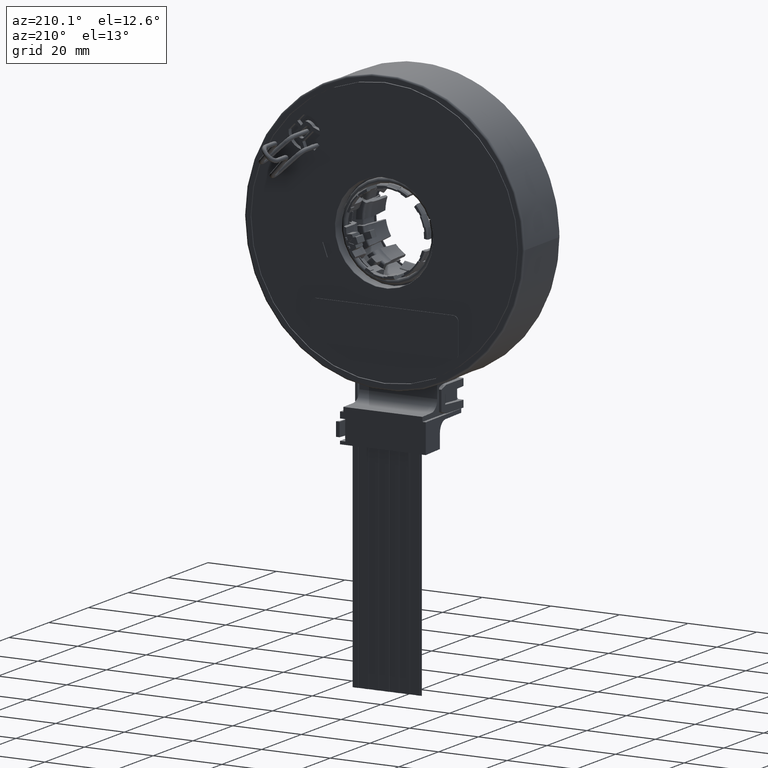
[diagram: clean part render]
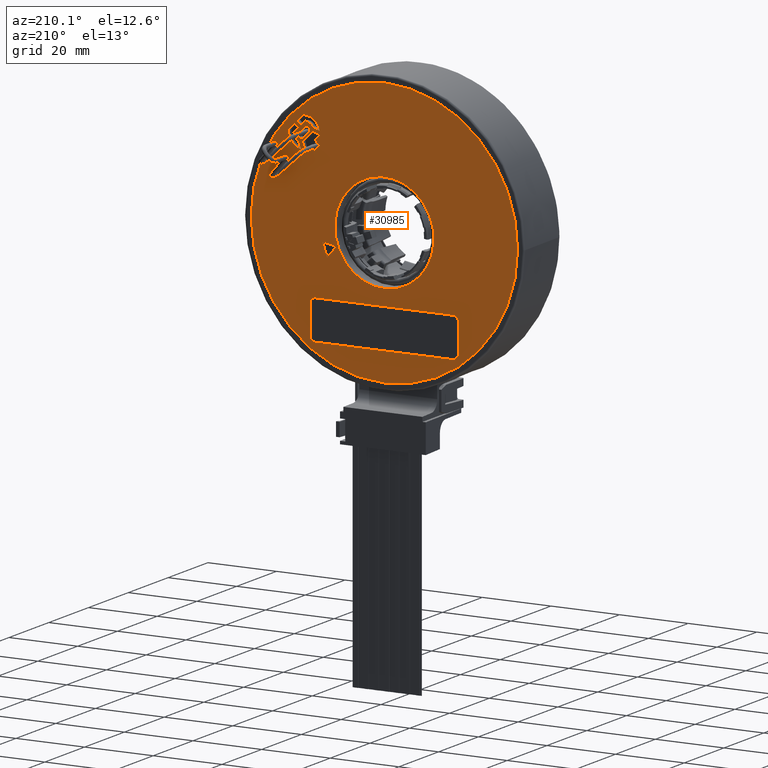
[diagram: same view with one face highlighted and labeled with its STEP entity id]
A machine part, auxiliary view. The second image highlights one B-rep face of the part: STEP entity #30985.
In plain terms, the highlighted planar face has unit normal (0, 1, 0).
Its self-contained STEP definition (entity closure, byte-faithful):
#1371=CARTESIAN_POINT('',(0.E0,7.19E-1,0.E0));
#1372=DIRECTION('',(0.E0,-1.E0,0.E0));
#1373=DIRECTION('',(7.071067811865E-1,0.E0,7.071067811865E-1));
#1374=AXIS2_PLACEMENT_3D('',#1371,#1372,#1373);
#1376=CARTESIAN_POINT('',(0.E0,7.19E-1,0.E0));
#1377=DIRECTION('',(0.E0,1.E0,0.E0));
#1378=DIRECTION('',(7.071067811865E-1,0.E0,7.071067811865E-1));
#1379=AXIS2_PLACEMENT_3D('',#1376,#1377,#1378);
#1381=CARTESIAN_POINT('',(9.192388155425E-1,7.19E-1,9.192388155425E-1));
#1382=DIRECTION('',(0.E0,1.E0,0.E0));
#1383=DIRECTION('',(-8.446981056054E-1,0.E0,5.352430386157E-1));
#1384=AXIS2_PLACEMENT_3D('',#1381,#1382,#1383);
#1386=DIRECTION('',(-9.369948462959E-1,0.E0,-3.493431808622E-1));
#1387=VECTOR('',#1386,8.235482443757E-2);
#1388=CARTESIAN_POINT('',(8.197032308454E-1,7.19E-1,9.823095486839E-1));
#1389=LINE('',#1388,#1387);
#1390=CARTESIAN_POINT('',(9.192388155425E-1,7.19E-1,9.192388155425E-1));
#1391=DIRECTION('',(0.E0,1.E0,0.E0));
#1392=DIRECTION('',(-9.816757264598E-1,0.E0,1.905590934058E-1));
#1393=AXIS2_PLACEMENT_3D('',#1390,#1391,#1392);
#1395=DIRECTION('',(7.071067811865E-1,0.E0,-7.071067811865E-1));
#1396=VECTOR('',#1395,1.E-1);
#1397=CARTESIAN_POINT('',(9.292543316052E-1,7.19E-1,1.098959959090E0));
#1398=LINE('',#1397,#1396);
#1399=DIRECTION('',(-7.071067811865E-1,0.E0,-7.071067811865E-1));
#1400=VECTOR('',#1399,6.116407864999E-2);
#1401=CARTESIAN_POINT('',(9.999650097238E-1,7.19E-1,1.028249280971E0));
#1402=LINE('',#1401,#1400);
#1403=DIRECTION('',(-7.071067811865E-1,0.E0,7.071067811865E-1));
#1404=VECTOR('',#1403,7.25E-2);
#1405=CARTESIAN_POINT('',(9.567154749454E-1,7.19E-1,9.849997461929E-1));
#1406=LINE('',#1405,#1404);
#1407=CARTESIAN_POINT('',(9.192388155425E-1,7.19E-1,9.192388155425E-1));
#1408=DIRECTION('',(0.E0,1.E0,0.E0));
#1409=DIRECTION('',(9.984507974858E-1,0.E0,5.564175590370E-2));
#1410=AXIS2_PLACEMENT_3D('',#1407,#1408,#1409);
#1412=DIRECTION('',(3.493431808622E-1,0.E0,9.369948462959E-1));
#1413=VECTOR('',#1412,8.235482443757E-2);
#1414=CARTESIAN_POINT('',(9.535394523556E-1,7.19E-1,7.425371847797E-1));
#1415=LINE('',#1414,#1413);
#1416=CARTESIAN_POINT('',(9.192388155425E-1,7.19E-1,9.192388155425E-1));
#1417=DIRECTION('',(0.E0,1.E0,0.E0));
#1418=DIRECTION('',(9.931301085669E-1,0.E0,-1.170153300124E-1));
#1419=AXIS2_PLACEMENT_3D('',#1416,#1417,#1418);
#1421=DIRECTION('',(-7.071067811865E-1,0.E0,7.071067811865E-1));
#1422=VECTOR('',#1421,7.25E-2);
#1423=CARTESIAN_POINT('',(1.036264987829E0,7.19E-1,9.054502333094E-1));
#1424=LINE('',#1423,#1422);
#1425=DIRECTION('',(7.071067811865E-1,0.E0,7.071067811865E-1));
#1426=VECTOR('',#1425,6.116407864999E-2);
#1427=CARTESIAN_POINT('',(9.849997461929E-1,7.19E-1,9.567154749454E-1));
#1428=LINE('',#1427,#1426);
#1429=DIRECTION('',(7.071067811865E-1,0.E0,-7.071067811865E-1));
#1430=VECTOR('',#1429,1.E-1);
#1431=CARTESIAN_POINT('',(1.028249280971E0,7.19E-1,9.999650097238E-1));
#1432=LINE('',#1431,#1430);
#1433=DIRECTION('',(9.848077530122E-1,0.E0,1.736481776669E-1));
#1434=VECTOR('',#1433,1.628127759115E-1);
#1435=CARTESIAN_POINT('',(5.506598757805E-1,7.19E-1,-2.004238039888E-1));
#1436=LINE('',#1435,#1434);
#1437=DIRECTION('',(-3.420201433257E-1,0.E0,-9.396926207859E-1));
#1438=VECTOR('',#1437,1.628127759115E-1);
#1439=CARTESIAN_POINT('',(7.109991597876E-1,7.19E-1,-1.721516621509E-1));
#1440=LINE('',#1439,#1438);
#1441=DIRECTION('',(-6.427876096865E-1,0.E0,7.660444431190E-1));
#1442=VECTOR('',#1441,1.628127759115E-1);
#1443=CARTESIAN_POINT('',(6.553139108351E-1,7.19E-1,-3.251456262446E-1));
#1444=LINE('',#1443,#1442);
#1445=DIRECTION('',(-7.071067811865E-1,0.E0,7.071067811865E-1));
#1446=VECTOR('',#1445,7.886588452046E-2);
#1447=CARTESIAN_POINT('',(7.952575965703E-1,7.19E-1,8.539474594088E-1));
#1448=LINE('',#1447,#1446);
#1449=DIRECTION('',(9.369948462959E-1,0.E0,3.493431808622E-1));
#1450=VECTOR('',#1449,8.795284178903E-2);
#1451=CARTESIAN_POINT('',(7.394909948216E-1,7.19E-1,9.097140611575E-1));
#1452=LINE('',#1451,#1450);
#1453=DIRECTION('',(7.071067811865E-1,0.E0,-7.071067811865E-1));
#1454=VECTOR('',#1453,1.676372445191E-1);
#1455=CARTESIAN_POINT('',(8.219023542950E-1,7.19E-1,9.404397866740E-1));
#1456=LINE('',#1455,#1454);
#1457=DIRECTION('',(-3.493431808622E-1,0.E0,-9.369948462959E-1));
#1458=VECTOR('',#1457,8.795284178903E-2);
#1459=CARTESIAN_POINT('',(9.404397866740E-1,7.19E-1,8.219023542950E-1));
#1460=LINE('',#1459,#1458);
#1461=DIRECTION('',(-7.071067811865E-1,0.E0,7.071067811865E-1));
#1462=VECTOR('',#1461,7.886588452046E-2);
#1463=CARTESIAN_POINT('',(9.097140611575E-1,7.19E-1,7.394909948216E-1));
#1464=LINE('',#1463,#1462);
#1465=DIRECTION('',(-7.071067811865E-1,0.E0,-7.071067811865E-1));
#1466=VECTOR('',#1465,7.E-2);
#1467=CARTESIAN_POINT('',(8.539474594088E-1,7.19E-1,7.952575965703E-1));
#1468=LINE('',#1467,#1466);
#1469=DIRECTION('',(-7.071067811865E-1,0.E0,7.071067811865E-1));
#1470=VECTOR('',#1469,8.3E-2);
#1471=CARTESIAN_POINT('',(8.044499847258E-1,7.19E-1,7.457601218873E-1));
#1472=LINE('',#1471,#1470);
#1473=DIRECTION('',(7.071067811865E-1,0.E0,7.071067811865E-1));
#1474=VECTOR('',#1473,7.E-2);
#1475=CARTESIAN_POINT('',(7.457601218873E-1,7.19E-1,8.044499847258E-1));
#1476=LINE('',#1475,#1474);
#1477=DIRECTION('',(-1.E0,0.E0,0.E0));
#1478=VECTOR('',#1477,1.58E0);
#1479=CARTESIAN_POINT('',(7.9E-1,7.19E-1,-1.2E0));
#1480=LINE('',#1479,#1478);
#1481=CARTESIAN_POINT('',(-7.9E-1,7.19E-1,-1.14E0));
#1482=DIRECTION('',(0.E0,-1.E0,0.E0));
#1483=DIRECTION('',(-1.E0,0.E0,-5.551115123126E-14));
#1484=AXIS2_PLACEMENT_3D('',#1481,#1482,#1483);
#1486=DIRECTION('',(0.E0,0.E0,1.E0));
#1487=VECTOR('',#1486,3.3E-1);
#1488=CARTESIAN_POINT('',(-8.5E-1,7.19E-1,-1.14E0));
#1489=LINE('',#1488,#1487);
#1490=CARTESIAN_POINT('',(-7.9E-1,7.19E-1,-8.1E-1));
#1491=DIRECTION('',(0.E0,-1.E0,0.E0));
#1492=DIRECTION('',(1.110223024625E-14,0.E0,1.E0));
#1493=AXIS2_PLACEMENT_3D('',#1490,#1491,#1492);
#1495=DIRECTION('',(1.E0,0.E0,0.E0));
#1496=VECTOR('',#1495,1.58E0);
#1497=CARTESIAN_POINT('',(-7.9E-1,7.19E-1,-7.5E-1));
#1498=LINE('',#1497,#1496);
#1499=CARTESIAN_POINT('',(7.9E-1,7.19E-1,-8.1E-1));
#1500=DIRECTION('',(0.E0,-1.E0,0.E0));
#1501=DIRECTION('',(1.E0,0.E0,-6.476300976980E-14));
#1502=AXIS2_PLACEMENT_3D('',#1499,#1500,#1501);
#1504=DIRECTION('',(0.E0,0.E0,-1.E0));
#1505=VECTOR('',#1504,3.3E-1);
#1506=CARTESIAN_POINT('',(8.5E-1,7.19E-1,-8.1E-1));
#1507=LINE('',#1506,#1505);
#1508=CARTESIAN_POINT('',(7.9E-1,7.19E-1,-1.14E0));
#1509=DIRECTION('',(0.E0,-1.E0,0.E0));
#1510=DIRECTION('',(-3.515706244646E-14,0.E0,-1.E0));
#1511=AXIS2_PLACEMENT_3D('',#1508,#1509,#1510);
#1613=CARTESIAN_POINT('',(0.E0,7.19E-1,0.E0));
#1614=DIRECTION('',(0.E0,-1.E0,0.E0));
#1615=DIRECTION('',(-7.071067811865E-1,0.E0,-7.071067811865E-1));
#1616=AXIS2_PLACEMENT_3D('',#1613,#1614,#1615);
#1628=CARTESIAN_POINT('',(0.E0,7.19E-1,0.E0));
#1629=DIRECTION('',(0.E0,-1.E0,0.E0));
#1630=DIRECTION('',(7.071067811865E-1,0.E0,7.071067811865E-1));
#1631=AXIS2_PLACEMENT_3D('',#1628,#1629,#1630);
#17050=CARTESIAN_POINT('',(0.E0,7.19E-1,0.E0));
#17051=DIRECTION('',(0.E0,-1.E0,0.E0));
#17052=DIRECTION('',(7.311597909433E-1,0.E0,6.822062445535E-1));
#17053=AXIS2_PLACEMENT_3D('',#17050,#17051,#17052);
#17060=CARTESIAN_POINT('',(8.868681179195E-1,7.19E-1,9.505077282263E-1));
#17061=DIRECTION('',(0.E0,-1.E0,0.E0));
#17062=DIRECTION('',(6.822062445536E-1,0.E0,7.311597909432E-1));
#17063=AXIS2_PLACEMENT_3D('',#17060,#17061,#17062);
#17078=CARTESIAN_POINT('',(0.E0,7.19E-1,0.E0));
#17079=DIRECTION('',(0.E0,-1.E0,0.E0));
#17080=DIRECTION('',(7.311597909433E-1,0.E0,6.822062445535E-1));
#17081=AXIS2_PLACEMENT_3D('',#17078,#17079,#17080);
#17092=CARTESIAN_POINT('',(9.505077282263E-1,7.19E-1,8.868681179195E-1));
#17093=DIRECTION('',(0.E0,-1.E0,0.E0));
#17094=DIRECTION('',(-7.311597909433E-1,0.E0,-6.822062445534E-1));
#17095=AXIS2_PLACEMENT_3D('',#17092,#17093,#17094);
#27312=CARTESIAN_POINT('',(1.080459161653E0,7.19E-1,1.080459161653E0));
#27314=VERTEX_POINT('',#27312);
#27316=CARTESIAN_POINT('',(-1.080459161653E0,7.19E-1,-1.080459161653E0));
#27318=VERTEX_POINT('',#27316);
#27612=CARTESIAN_POINT('',(8.539474594088E-1,7.19E-1,7.952575965703E-1));
#27613=CARTESIAN_POINT('',(8.044499847258E-1,7.19E-1,7.457601218873E-1));
#27614=VERTEX_POINT('',#27612);
#27615=VERTEX_POINT('',#27613);
#27616=CARTESIAN_POINT('',(7.457601218873E-1,7.19E-1,8.044499847258E-1));
#27617=VERTEX_POINT('',#27616);
#27618=CARTESIAN_POINT('',(7.952575965703E-1,7.19E-1,8.539474594088E-1));
#27619=VERTEX_POINT('',#27618);
#27654=CARTESIAN_POINT('',(-4.023437584951E-1,7.19E-1,-4.023437584951E-1));
#27655=CARTESIAN_POINT('',(4.023437584951E-1,7.19E-1,4.023437584951E-1));
#27656=VERTEX_POINT('',#27654);
#27657=VERTEX_POINT('',#27655);
#27672=CARTESIAN_POINT('',(5.506598757805E-1,7.19E-1,-2.004238039888E-1));
#27673=CARTESIAN_POINT('',(7.109991597876E-1,7.19E-1,-1.721516621509E-1));
#27674=VERTEX_POINT('',#27672);
#27675=VERTEX_POINT('',#27673);
#27676=CARTESIAN_POINT('',(6.553139108351E-1,7.19E-1,-3.251456262446E-1));
#27677=VERTEX_POINT('',#27676);
#27686=CARTESIAN_POINT('',(7.425371847797E-1,7.19E-1,9.535394523556E-1));
#27687=CARTESIAN_POINT('',(9.292543316052E-1,7.19E-1,1.098959959090E0));
#27688=VERTEX_POINT('',#27686);
#27689=VERTEX_POINT('',#27687);
#27690=CARTESIAN_POINT('',(9.999650097238E-1,7.19E-1,1.028249280971E0));
#27691=VERTEX_POINT('',#27690);
#27692=CARTESIAN_POINT('',(1.028249280971E0,7.19E-1,9.999650097238E-1));
#27693=CARTESIAN_POINT('',(1.098959959090E0,7.19E-1,9.292543316052E-1));
#27694=VERTEX_POINT('',#27692);
#27695=VERTEX_POINT('',#27693);
#27696=CARTESIAN_POINT('',(9.535394523556E-1,7.19E-1,7.425371847797E-1));
#27697=VERTEX_POINT('',#27696);
#27698=CARTESIAN_POINT('',(9.097140611575E-1,7.19E-1,7.394909948216E-1));
#27699=VERTEX_POINT('',#27698);
#27700=CARTESIAN_POINT('',(7.394909948216E-1,7.19E-1,9.097140611575E-1));
#27701=VERTEX_POINT('',#27700);
#27702=CARTESIAN_POINT('',(1.036264987829E0,7.19E-1,9.054502333094E-1));
#27703=CARTESIAN_POINT('',(9.849997461929E-1,7.19E-1,9.567154749454E-1));
#27704=VERTEX_POINT('',#27702);
#27705=VERTEX_POINT('',#27703);
#27706=CARTESIAN_POINT('',(9.567154749454E-1,7.19E-1,9.849997461929E-1));
#27707=CARTESIAN_POINT('',(9.054502333094E-1,7.19E-1,1.036264987829E0));
#27708=VERTEX_POINT('',#27706);
#27709=VERTEX_POINT('',#27707);
#27710=CARTESIAN_POINT('',(8.197032308454E-1,7.19E-1,9.823095486839E-1));
#27711=VERTEX_POINT('',#27710);
#27712=CARTESIAN_POINT('',(9.823095486839E-1,7.19E-1,8.197032308454E-1));
#27713=VERTEX_POINT('',#27712);
#27714=CARTESIAN_POINT('',(9.404397866740E-1,7.19E-1,8.219023542950E-1));
#27715=VERTEX_POINT('',#27714);
#27716=CARTESIAN_POINT('',(9.760983209093E-1,7.19E-1,9.107453364789E-1));
#27717=CARTESIAN_POINT('',(9.107453364789E-1,7.19E-1,9.760983209093E-1));
#27718=VERTEX_POINT('',#27716);
#27719=VERTEX_POINT('',#27717);
#27724=CARTESIAN_POINT('',(9.249171355433E-1,7.19E-1,8.629908993601E-1));
#27725=VERTEX_POINT('',#27724);
#27728=CARTESIAN_POINT('',(8.629908993601E-1,7.19E-1,9.249171355433E-1));
#27729=VERTEX_POINT('',#27728);
#27744=CARTESIAN_POINT('',(8.219023542950E-1,7.19E-1,9.404397866740E-1));
#27745=VERTEX_POINT('',#27744);
#29819=CARTESIAN_POINT('',(7.9E-1,7.19E-1,-1.2E0));
#29820=CARTESIAN_POINT('',(-7.9E-1,7.19E-1,-1.2E0));
#29821=VERTEX_POINT('',#29819);
#29822=VERTEX_POINT('',#29820);
#29823=CARTESIAN_POINT('',(-8.5E-1,7.19E-1,-1.14E0));
#29824=CARTESIAN_POINT('',(-8.5E-1,7.19E-1,-8.1E-1));
#29825=VERTEX_POINT('',#29823);
#29826=VERTEX_POINT('',#29824);
#29827=CARTESIAN_POINT('',(-7.9E-1,7.19E-1,-7.5E-1));
#29828=CARTESIAN_POINT('',(7.9E-1,7.19E-1,-7.5E-1));
#29829=VERTEX_POINT('',#29827);
#29830=VERTEX_POINT('',#29828);
#29831=CARTESIAN_POINT('',(8.5E-1,7.19E-1,-8.1E-1));
#29832=CARTESIAN_POINT('',(8.5E-1,7.19E-1,-1.14E0));
#29833=VERTEX_POINT('',#29831);
#29834=VERTEX_POINT('',#29832);
#30888=CARTESIAN_POINT('',(0.E0,7.19E-1,0.E0));
#30889=DIRECTION('',(0.E0,1.E0,0.E0));
#30890=DIRECTION('',(-7.071067811865E-1,0.E0,-7.071067811865E-1));
#30891=AXIS2_PLACEMENT_3D('',#30888,#30889,#30890);
#30892=PLANE('',#30891);
#30893=ORIENTED_EDGE('',*,*,#30881,.F.);
#30894=ORIENTED_EDGE('',*,*,#30870,.T.);
#30895=EDGE_LOOP('',(#30893,#30894));
#30896=FACE_OUTER_BOUND('',#30895,.F.);
#30898=ORIENTED_EDGE('',*,*,#30897,.F.);
#30900=ORIENTED_EDGE('',*,*,#30899,.T.);
#30902=ORIENTED_EDGE('',*,*,#30901,.T.);
#30904=ORIENTED_EDGE('',*,*,#30903,.T.);
#30906=ORIENTED_EDGE('',*,*,#30905,.T.);
#30908=ORIENTED_EDGE('',*,*,#30907,.T.);
#30909=EDGE_LOOP('',(#30898,#30900,#30902,#30904,#30906,#30908));
#30910=FACE_BOUND('',#30909,.F.);
#30912=ORIENTED_EDGE('',*,*,#30911,.T.);
#30914=ORIENTED_EDGE('',*,*,#30913,.T.);
#30916=ORIENTED_EDGE('',*,*,#30915,.F.);
#30918=ORIENTED_EDGE('',*,*,#30917,.T.);
#30920=ORIENTED_EDGE('',*,*,#30919,.T.);
#30922=ORIENTED_EDGE('',*,*,#30921,.T.);
#30923=EDGE_LOOP('',(#30912,#30914,#30916,#30918,#30920,#30922));
#30924=FACE_BOUND('',#30923,.F.);
#30926=ORIENTED_EDGE('',*,*,#30925,.F.);
#30928=ORIENTED_EDGE('',*,*,#30927,.F.);
#30929=EDGE_LOOP('',(#30926,#30928));
#30930=FACE_BOUND('',#30929,.F.);
#30932=ORIENTED_EDGE('',*,*,#30931,.T.);
#30934=ORIENTED_EDGE('',*,*,#30933,.T.);
#30936=ORIENTED_EDGE('',*,*,#30935,.T.);
#30937=EDGE_LOOP('',(#30932,#30934,#30936));
#30938=FACE_BOUND('',#30937,.F.);
#30940=ORIENTED_EDGE('',*,*,#30939,.F.);
#30942=ORIENTED_EDGE('',*,*,#30941,.T.);
#30944=ORIENTED_EDGE('',*,*,#30943,.F.);
#30946=ORIENTED_EDGE('',*,*,#30945,.F.);
#30947=EDGE_LOOP('',(#30940,#30942,#30944,#30946));
#30948=FACE_BOUND('',#30947,.F.);
#30950=ORIENTED_EDGE('',*,*,#30949,.T.);
#30952=ORIENTED_EDGE('',*,*,#30951,.T.);
#30954=ORIENTED_EDGE('',*,*,#30953,.T.);
#30956=ORIENTED_EDGE('',*,*,#30955,.T.);
#30958=ORIENTED_EDGE('',*,*,#30957,.T.);
#30960=ORIENTED_EDGE('',*,*,#30959,.T.);
#30962=ORIENTED_EDGE('',*,*,#30961,.T.);
#30964=ORIENTED_EDGE('',*,*,#30963,.T.);
#30965=EDGE_LOOP('',(#30950,#30952,#30954,#30956,#30958,#30960,#30962,#30964));
#30966=FACE_BOUND('',#30965,.F.);
#30968=ORIENTED_EDGE('',*,*,#30967,.T.);
#30970=ORIENTED_EDGE('',*,*,#30969,.F.);
#30972=ORIENTED_EDGE('',*,*,#30971,.T.);
#30974=ORIENTED_EDGE('',*,*,#30973,.F.);
#30976=ORIENTED_EDGE('',*,*,#30975,.T.);
#30978=ORIENTED_EDGE('',*,*,#30977,.F.);
#30980=ORIENTED_EDGE('',*,*,#30979,.T.);
#30982=ORIENTED_EDGE('',*,*,#30981,.F.);
#30983=EDGE_LOOP('',(#30968,#30970,#30972,#30974,#30976,#30978,#30980,#30982));
#30984=FACE_BOUND('',#30983,.F.);
#30985=ADVANCED_FACE('',(#30896,#30910,#30924,#30930,#30938,#30948,#30966,
#30984),#30892,.T.);
#1375=CIRCLE('',#1374,1.528E0);
#1380=CIRCLE('',#1379,1.528E0);
#1385=CIRCLE('',#1384,1.178356906883E-1);
#1394=CIRCLE('',#1393,1.8E-1);
#1411=CIRCLE('',#1410,1.8E-1);
#1420=CIRCLE('',#1419,1.178356906883E-1);
#1485=CIRCLE('',#1484,6.E-2);
#1494=CIRCLE('',#1493,6.E-2);
#1503=CIRCLE('',#1502,6.E-2);
#1512=CIRCLE('',#1511,6.E-2);
#1617=CIRCLE('',#1616,5.69E-1);
#1632=CIRCLE('',#1631,5.69E-1);
#17054=CIRCLE('',#17053,1.335E0);
#17064=CIRCLE('',#17063,3.5E-2);
#17082=CIRCLE('',#17081,1.265E0);
#17096=CIRCLE('',#17095,3.5E-2);
#30870=EDGE_CURVE('',#27314,#27318,#1375,.T.);
#30881=EDGE_CURVE('',#27314,#27318,#1380,.T.);
#30897=EDGE_CURVE('',#27711,#27709,#1385,.T.);
#30899=EDGE_CURVE('',#27711,#27688,#1389,.T.);
#30901=EDGE_CURVE('',#27688,#27689,#1394,.T.);
#30903=EDGE_CURVE('',#27689,#27691,#1398,.T.);
#30905=EDGE_CURVE('',#27691,#27708,#1402,.T.);
#30907=EDGE_CURVE('',#27708,#27709,#1406,.T.);
#30911=EDGE_CURVE('',#27695,#27697,#1411,.T.);
#30913=EDGE_CURVE('',#27697,#27713,#1415,.T.);
#30915=EDGE_CURVE('',#27704,#27713,#1420,.T.);
#30917=EDGE_CURVE('',#27704,#27705,#1424,.T.);
#30919=EDGE_CURVE('',#27705,#27694,#1428,.T.);
#30921=EDGE_CURVE('',#27694,#27695,#1432,.T.);
#30925=EDGE_CURVE('',#27656,#27657,#1617,.T.);
#30927=EDGE_CURVE('',#27657,#27656,#1632,.T.);
#30931=EDGE_CURVE('',#27674,#27675,#1436,.T.);
#30933=EDGE_CURVE('',#27675,#27677,#1440,.T.);
#30935=EDGE_CURVE('',#27677,#27674,#1444,.T.);
#30939=EDGE_CURVE('',#27725,#27718,#17096,.T.);
#30941=EDGE_CURVE('',#27725,#27729,#17082,.T.);
#30943=EDGE_CURVE('',#27719,#27729,#17064,.T.);
#30945=EDGE_CURVE('',#27718,#27719,#17054,.T.);
#30949=EDGE_CURVE('',#27619,#27701,#1448,.T.);
#30951=EDGE_CURVE('',#27701,#27745,#1452,.T.);
#30953=EDGE_CURVE('',#27745,#27715,#1456,.T.);
#30955=EDGE_CURVE('',#27715,#27699,#1460,.T.);
#30957=EDGE_CURVE('',#27699,#27614,#1464,.T.);
#30959=EDGE_CURVE('',#27614,#27615,#1468,.T.);
#30961=EDGE_CURVE('',#27615,#27617,#1472,.T.);
#30963=EDGE_CURVE('',#27617,#27619,#1476,.T.);
#30967=EDGE_CURVE('',#29821,#29822,#1480,.T.);
#30969=EDGE_CURVE('',#29825,#29822,#1485,.T.);
#30971=EDGE_CURVE('',#29825,#29826,#1489,.T.);
#30973=EDGE_CURVE('',#29829,#29826,#1494,.T.);
#30975=EDGE_CURVE('',#29829,#29830,#1498,.T.);
#30977=EDGE_CURVE('',#29833,#29830,#1503,.T.);
#30979=EDGE_CURVE('',#29833,#29834,#1507,.T.);
#30981=EDGE_CURVE('',#29821,#29834,#1512,.T.);